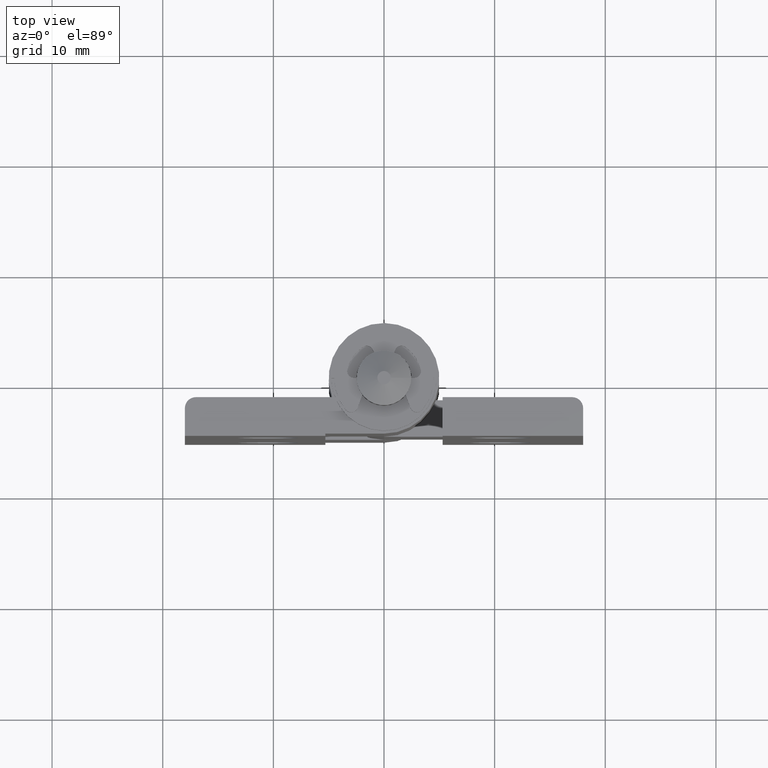
[diagram: clean part render]
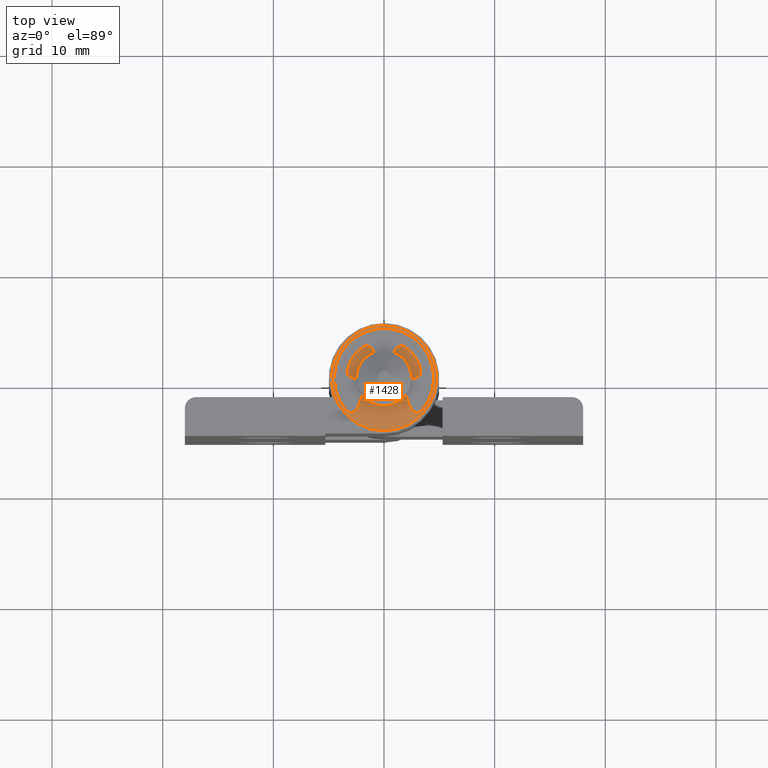
[diagram: same view with one face highlighted and labeled with its STEP entity id]
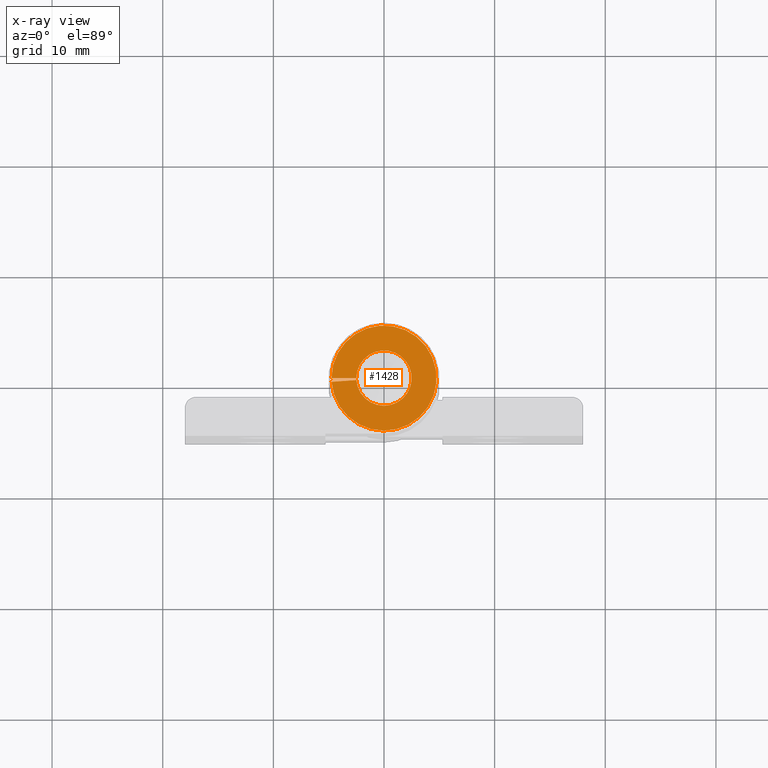
[diagram: x-ray of the same camera — body ghosted, the highlighted face saturated]
A machine part, top view. The second image highlights one B-rep face of the part: STEP entity #1428.
The next image is the same camera in x-ray: the body ghosted, the highlighted face saturated — about 0% of this face is hidden behind the body in this view.
In plain terms, the highlighted planar face has unit normal (-0, 0, 1).
Its self-contained STEP definition (entity closure, byte-faithful):
#211=FACE_OUTER_BOUND('',#318,.T.);
#318=EDGE_LOOP('',(#1249,#1250,#1251,#1252));
#405=CIRCLE('',#1570,4.75);
#410=CIRCLE('',#1579,2.5);
#521=LINE('',#2421,#627);
#522=LINE('',#2422,#628);
#627=VECTOR('',#1972,2.25);
#628=VECTOR('',#1973,2.25000000000001);
#737=VERTEX_POINT('',#2388);
#739=VERTEX_POINT('',#2391);
#747=VERTEX_POINT('',#2415);
#748=VERTEX_POINT('',#2417);
#910=EDGE_CURVE('',#737,#739,#405,.T.);
#924=EDGE_CURVE('',#747,#748,#410,.T.);
#925=EDGE_CURVE('',#747,#737,#521,.T.);
#926=EDGE_CURVE('',#739,#748,#522,.T.);
#1249=ORIENTED_EDGE('',*,*,#925,.F.);
#1250=ORIENTED_EDGE('',*,*,#924,.T.);
#1251=ORIENTED_EDGE('',*,*,#926,.F.);
#1252=ORIENTED_EDGE('',*,*,#910,.F.);
#1354=PLANE('',#1580);
#1428=ADVANCED_FACE('',(#211),#1354,.T.);
#1570=AXIS2_PLACEMENT_3D('',#2392,#1941,#1942);
#1579=AXIS2_PLACEMENT_3D('',#2419,#1968,#1969);
#1580=AXIS2_PLACEMENT_3D('',#2420,#1970,#1971);
#1941=DIRECTION('center_axis',(0.,-1.,0.));
#1942=DIRECTION('ref_axis',(-1.,0.,-1.46407373836513E-15));
#1968=DIRECTION('center_axis',(6.16485355314706E-33,-1.,3.53184223519044E-31));
#1969=DIRECTION('ref_axis',(-1.,-6.16485355314692E-33,3.89685820584233E-16));
#1970=DIRECTION('center_axis',(0.,1.,0.));
#1971=DIRECTION('ref_axis',(0.,0.,1.));
#1972=DIRECTION('',(-1.,-2.46716227694479E-16,0.));
#1973=DIRECTION('',(0.997564050259824,2.46716227694479E-16,-0.0697564737441256));
#2388=CARTESIAN_POINT('',(-4.75,-5.55111512312578E-16,0.));
#2391=CARTESIAN_POINT('',(-4.73842923873417,-5.55111512312578E-16,0.331343250284597));
#2392=CARTESIAN_POINT('Origin',(0.,-5.55111512312578E-16,6.95435025723439E-15));
#2415=CARTESIAN_POINT('',(-2.5,0.,0.));
#2417=CARTESIAN_POINT('',(-2.49391012564956,6.16297582203915E-32,0.174391184360314));
#2419=CARTESIAN_POINT('Origin',(-1.66533453693773E-15,1.54121338828673E-32,
-9.74214551460582E-16));
#2420=CARTESIAN_POINT('Origin',(-4.75,-5.55111512312578E-16,0.));
#2421=CARTESIAN_POINT('',(-2.5,0.,0.));
#2422=CARTESIAN_POINT('',(-2.49391012564956,0.,0.174391184360314));